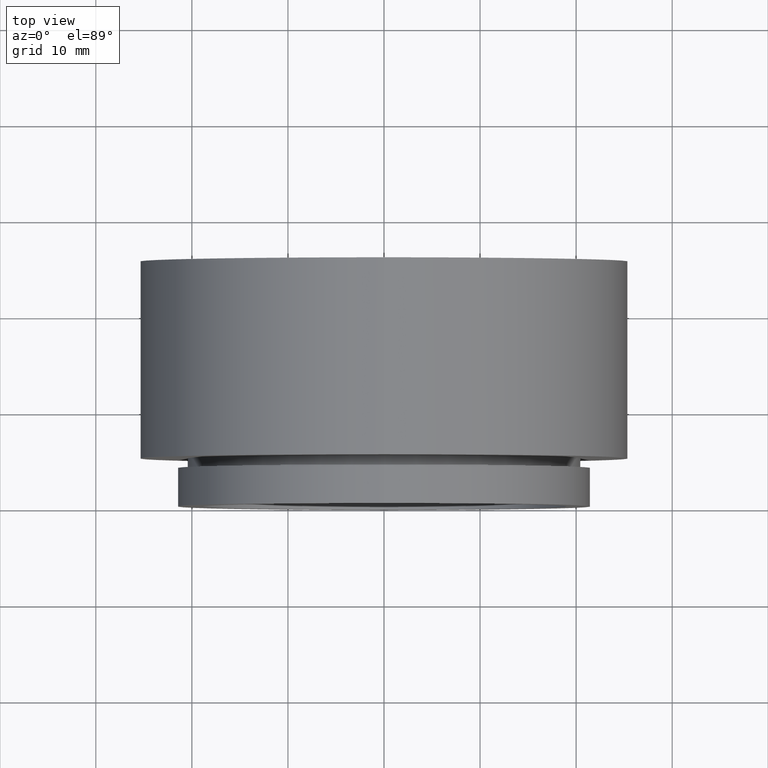
[diagram: clean part render]
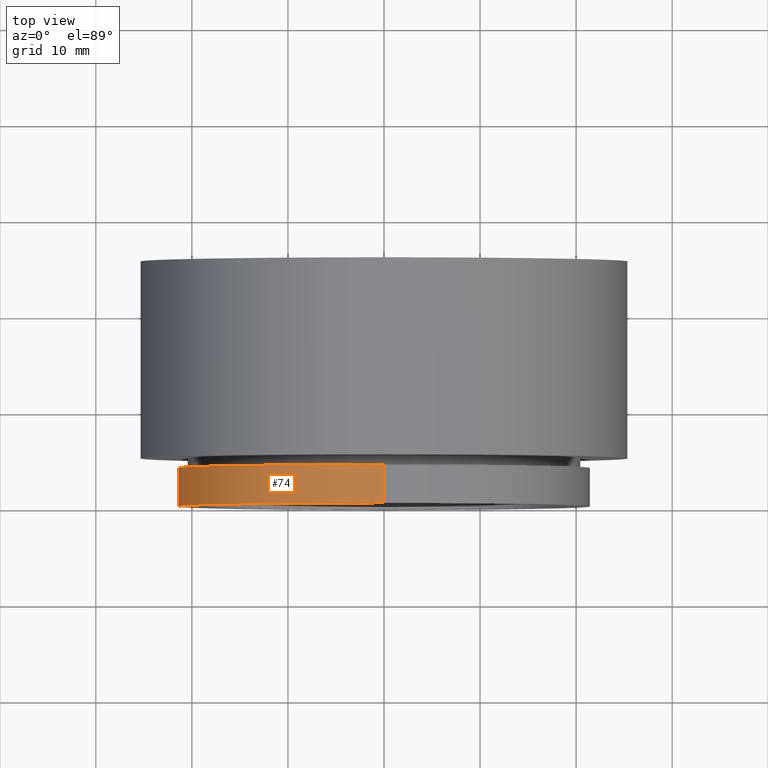
[diagram: same view with one face highlighted and labeled with its STEP entity id]
A machine part, top view. The second image highlights one B-rep face of the part: STEP entity #74.
In plain terms, the highlighted cylindrical surface (partial cylindrical patch) has radius 21.5 mm, axis along (-0, -1, -0).
Its self-contained STEP definition (entity closure, byte-faithful):
#23 = ORIENTED_EDGE ( 'NONE', *, *, #435, .F. ) ;
#32 = AXIS2_PLACEMENT_3D ( 'NONE', #289, #617, #603 ) ;
#40 = EDGE_CURVE ( 'NONE', #412, #488, #120, .T. ) ;
#74 = ADVANCED_FACE ( 'NONE', ( #234 ), #186, .T. ) ;
#119 = VECTOR ( 'NONE', #316, 1000.000000000000000 ) ;
#120 = LINE ( 'NONE', #307, #119 ) ;
#133 = CARTESIAN_POINT ( 'NONE',  ( 2.632990618166809200E-015, 0.0000000000000000000, 21.50000000000000000 ) ) ;
#186 = CYLINDRICAL_SURFACE ( 'NONE', #32, 21.50000000000000000 ) ;
#207 = AXIS2_PLACEMENT_3D ( 'NONE', #552, #410, #277 ) ;
#234 = FACE_OUTER_BOUND ( 'NONE', #583, .T. ) ;
#238 = LINE ( 'NONE', #442, #554 ) ;
#253 = CARTESIAN_POINT ( 'NONE',  ( 0.0000000000000000000, 0.0000000000000000000, -21.50000000000000000 ) ) ;
#254 = VERTEX_POINT ( 'NONE', #133 ) ;
#277 = DIRECTION ( 'NONE',  ( 0.0000000000000000000, 0.0000000000000000000, -1.000000000000000000 ) ) ;
#284 = CARTESIAN_POINT ( 'NONE',  ( 2.632990618166809200E-015, 3.999999999999999100, 21.50000000000000000 ) ) ;
#289 = CARTESIAN_POINT ( 'NONE',  ( 0.0000000000000000000, 0.0000000000000000000, 0.0000000000000000000 ) ) ;
#304 = ORIENTED_EDGE ( 'NONE', *, *, #613, .F. ) ;
#307 = CARTESIAN_POINT ( 'NONE',  ( 0.0000000000000000000, 0.0000000000000000000, -21.50000000000000000 ) ) ;
#311 = VERTEX_POINT ( 'NONE', #284 ) ;
#316 = DIRECTION ( 'NONE',  ( -0.0000000000000000000, -1.000000000000000000, -0.0000000000000000000 ) ) ;
#343 = DIRECTION ( 'NONE',  ( 0.0000000000000000000, 0.0000000000000000000, -1.000000000000000000 ) ) ;
#381 = EDGE_CURVE ( 'NONE', #311, #412, #544, .T. ) ;
#383 = DIRECTION ( 'NONE',  ( -0.0000000000000000000, -1.000000000000000000, -0.0000000000000000000 ) ) ;
#410 = DIRECTION ( 'NONE',  ( -0.0000000000000000000, -1.000000000000000000, -0.0000000000000000000 ) ) ;
#412 = VERTEX_POINT ( 'NONE', #535 ) ;
#435 = EDGE_CURVE ( 'NONE', #311, #254, #238, .T. ) ;
#440 = DIRECTION ( 'NONE',  ( -0.0000000000000000000, -1.000000000000000000, -0.0000000000000000000 ) ) ;
#442 = CARTESIAN_POINT ( 'NONE',  ( 2.632990618166809200E-015, 0.0000000000000000000, 21.50000000000000000 ) ) ;
#458 = ORIENTED_EDGE ( 'NONE', *, *, #40, .T. ) ;
#472 = ORIENTED_EDGE ( 'NONE', *, *, #381, .T. ) ;
#488 = VERTEX_POINT ( 'NONE', #253 ) ;
#510 = CARTESIAN_POINT ( 'NONE',  ( 0.0000000000000000000, 3.999999999999999100, 0.0000000000000000000 ) ) ;
#535 = CARTESIAN_POINT ( 'NONE',  ( 0.0000000000000000000, 3.999999999999999100, -21.50000000000000000 ) ) ;
#544 = CIRCLE ( 'NONE', #569, 21.50000000000000000 ) ;
#552 = CARTESIAN_POINT ( 'NONE',  ( 0.0000000000000000000, 0.0000000000000000000, 0.0000000000000000000 ) ) ;
#554 = VECTOR ( 'NONE', #383, 1000.000000000000000 ) ;
#569 = AXIS2_PLACEMENT_3D ( 'NONE', #510, #440, #343 ) ;
#581 = CIRCLE ( 'NONE', #207, 21.50000000000000000 ) ;
#583 = EDGE_LOOP ( 'NONE', ( #23, #472, #458, #304 ) ) ;
#603 = DIRECTION ( 'NONE',  ( 0.0000000000000000000, 0.0000000000000000000, -1.000000000000000000 ) ) ;
#613 = EDGE_CURVE ( 'NONE', #254, #488, #581, .T. ) ;
#617 = DIRECTION ( 'NONE',  ( -0.0000000000000000000, -1.000000000000000000, -0.0000000000000000000 ) ) ;